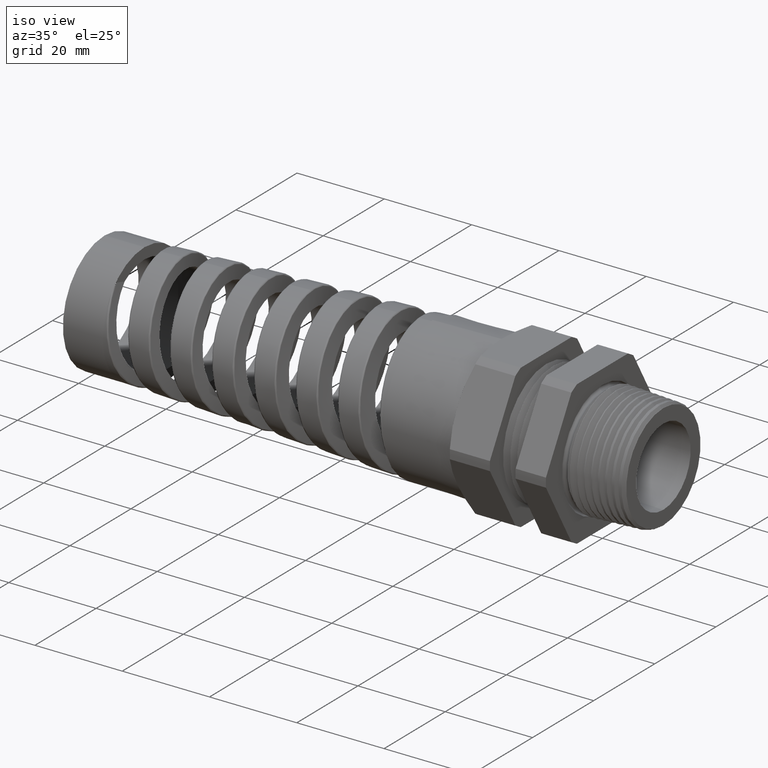
[diagram: clean part render]
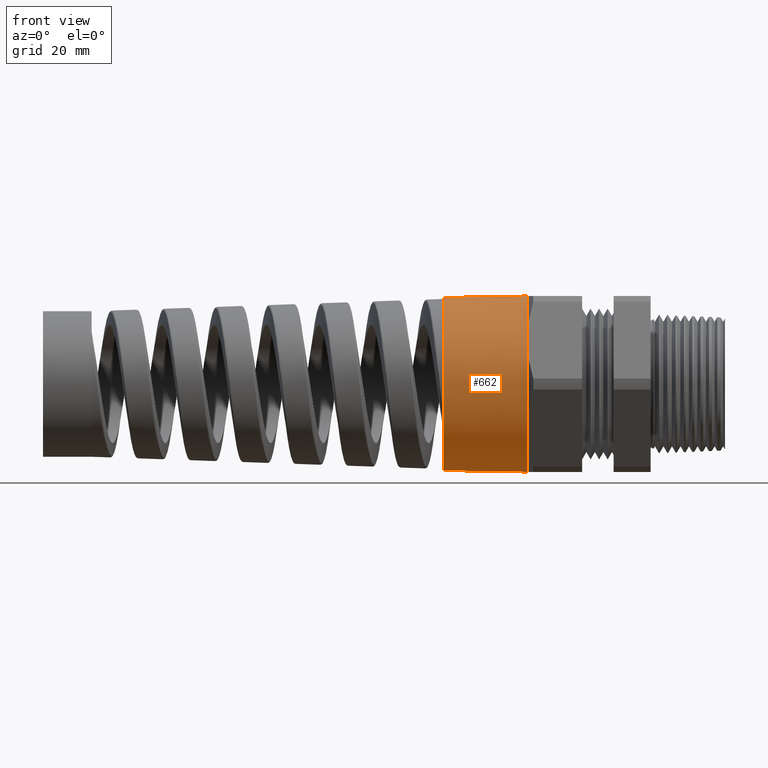
[diagram: tour spotlight — one face highlighted and labeled with its STEP entity id]
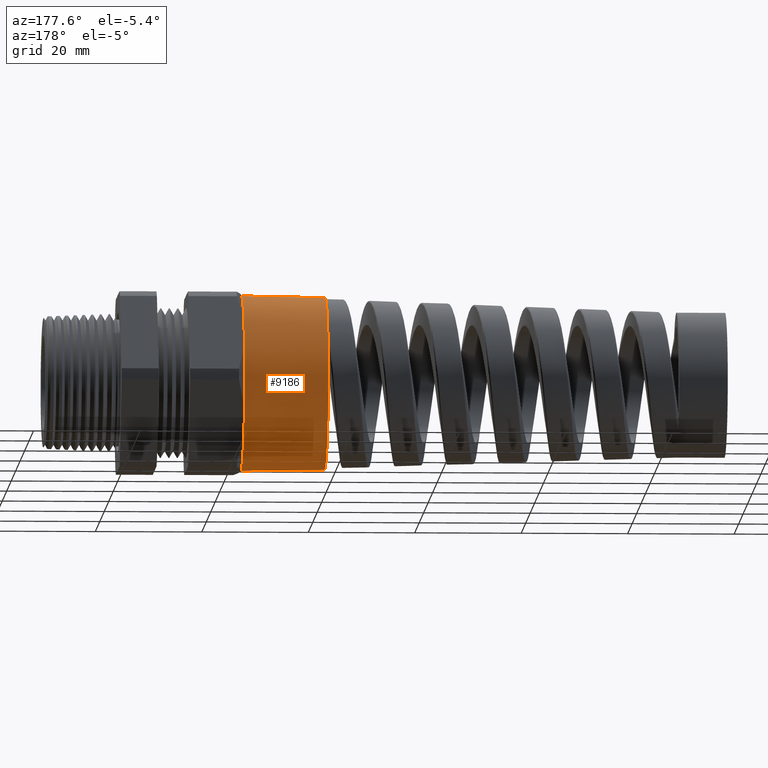
[diagram: tour spotlight — one face highlighted and labeled with its STEP entity id]
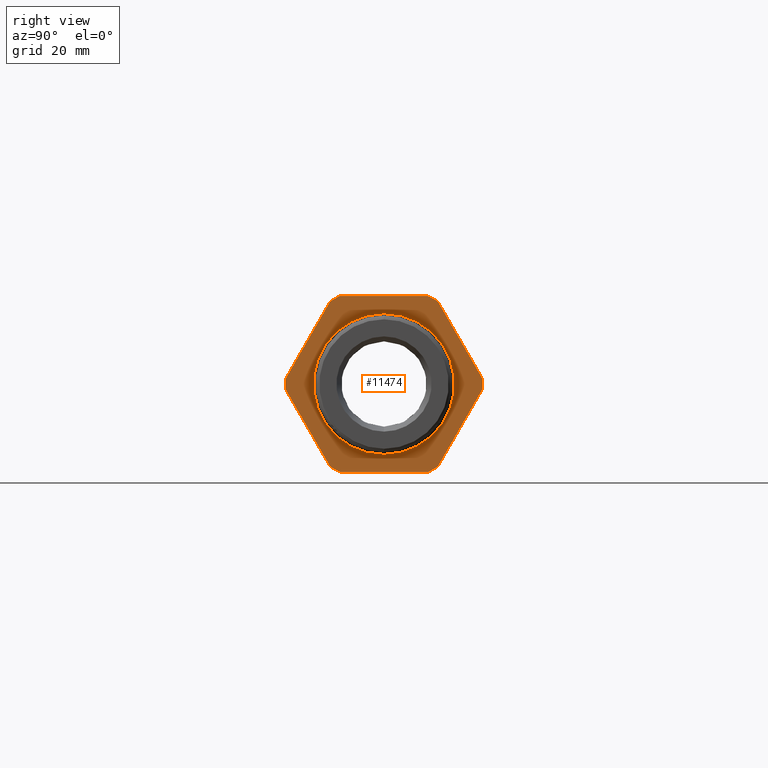
[diagram: tour spotlight — one face highlighted and labeled with its STEP entity id]
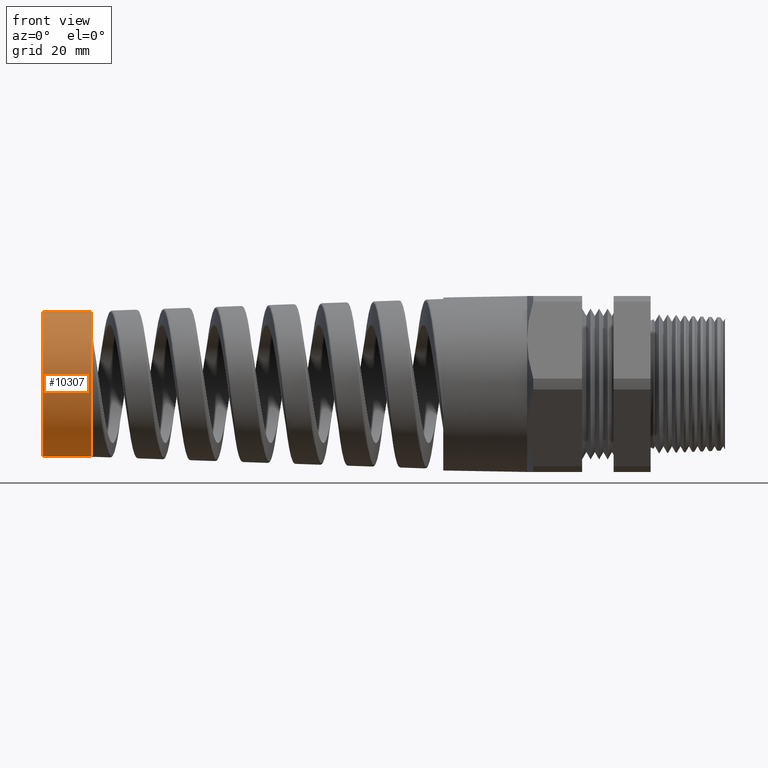
[diagram: tour spotlight — one face highlighted and labeled with its STEP entity id]
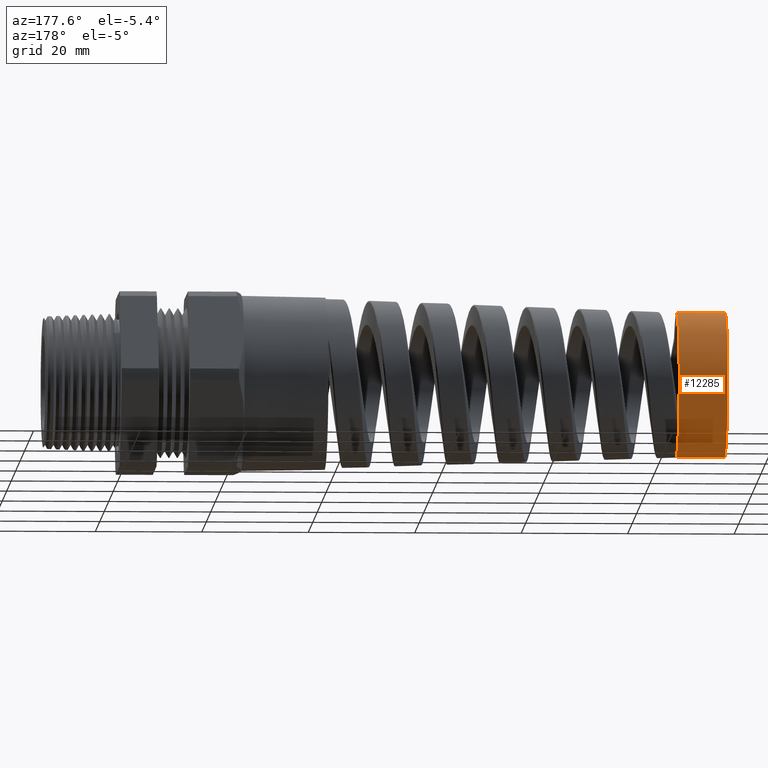
[diagram: tour spotlight — one face highlighted and labeled with its STEP entity id]
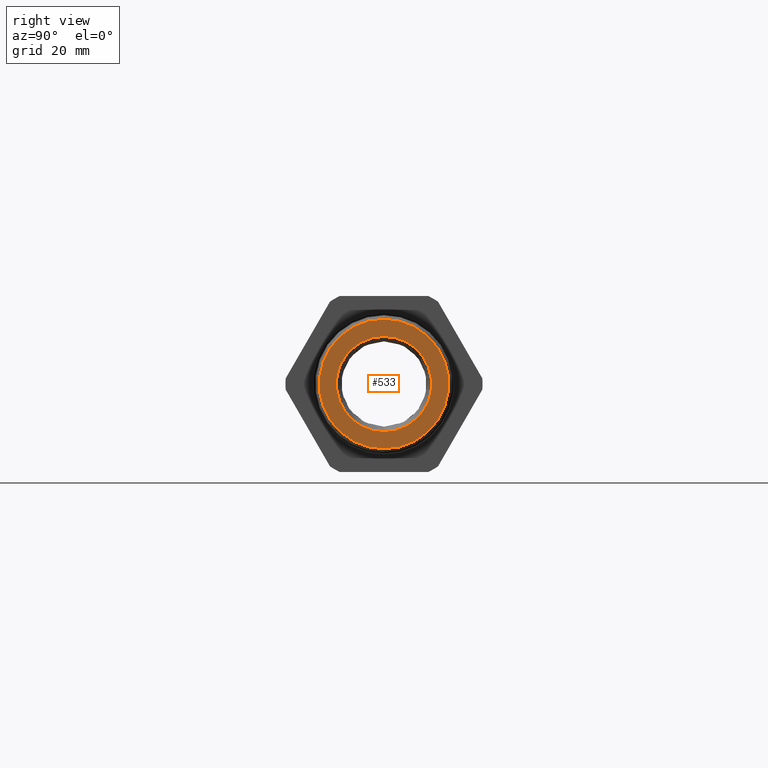
[diagram: tour spotlight — one face highlighted and labeled with its STEP entity id]
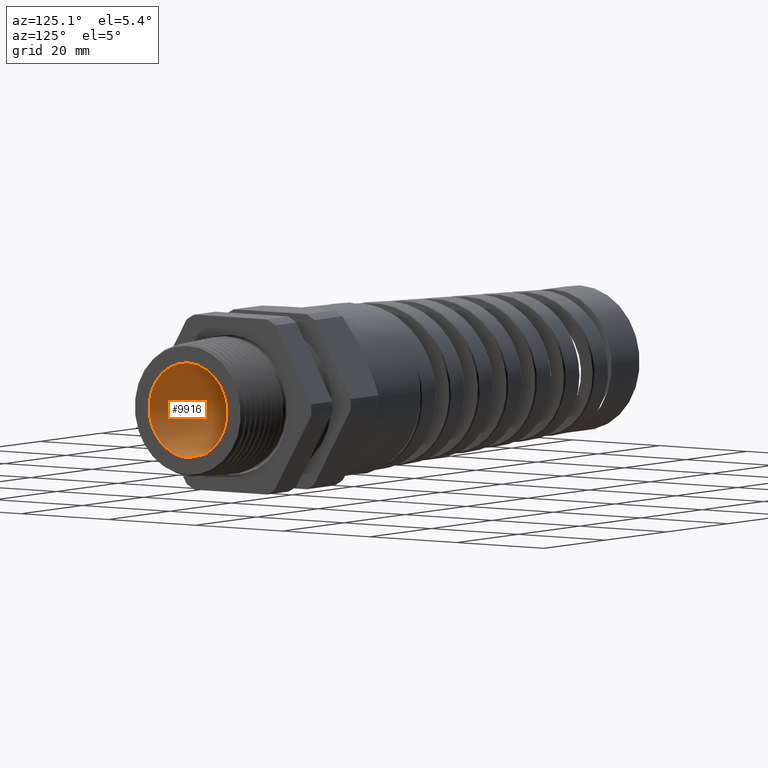
[diagram: tour spotlight — one face highlighted and labeled with its STEP entity id]
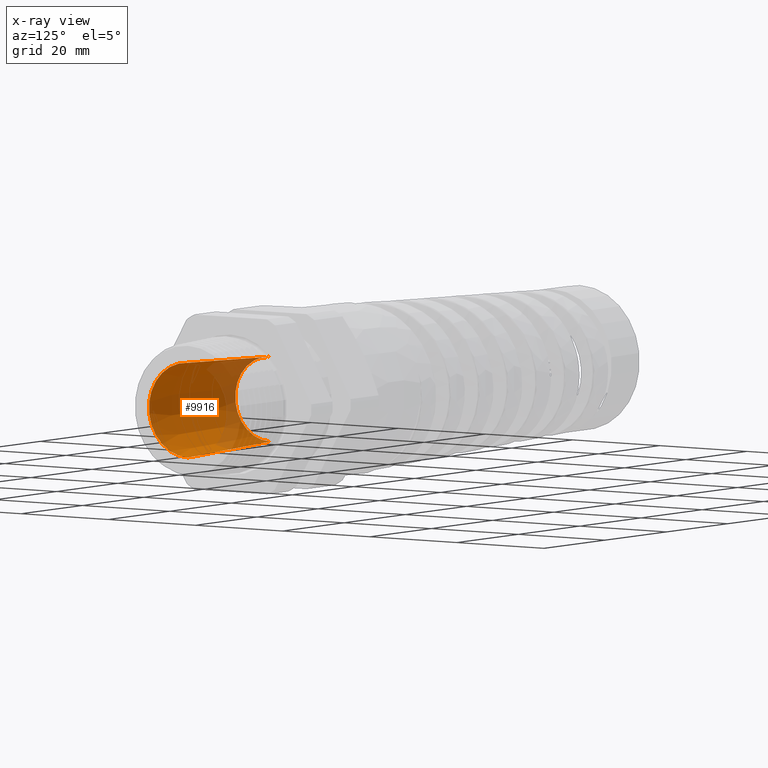
[diagram: x-ray of the same camera — body ghosted, this tour face saturated]
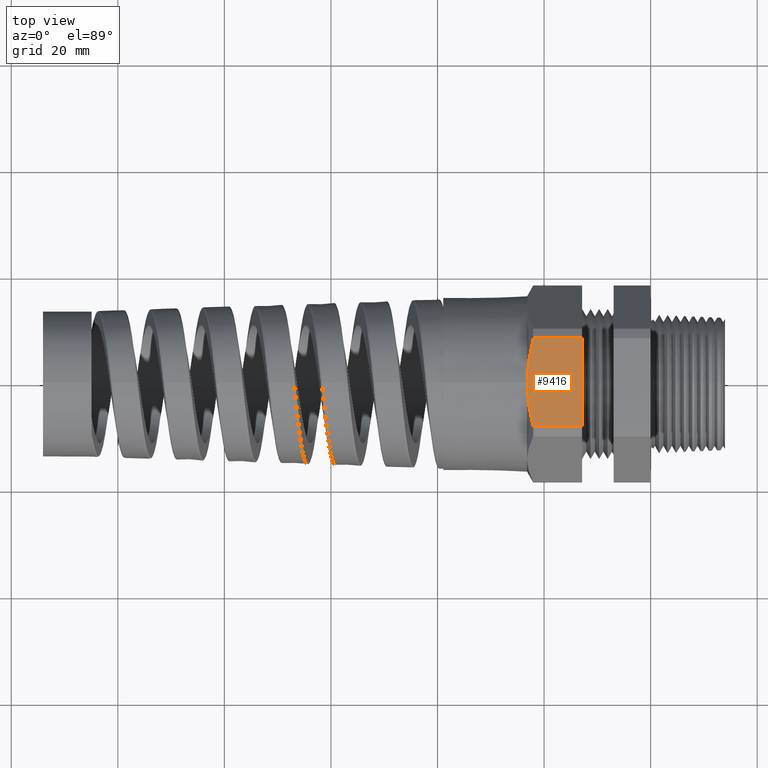
[diagram: tour spotlight — one face highlighted and labeled with its STEP entity id]
A machine part: a face-by-face anatomy tour. The part has 163 B-rep faces; the first image is the clean iso view, then the 8 largest visible faces are spotlighted one at a time (largest first), each with its STEP entity span.

Face 1 — front view, entity #662. In plain terms, the highlighted conical surface has half-angle 1 deg.
Definition (entity closure, byte-faithful):
#607 = VERTEX_POINT ( 'NONE', #13084 ) ;
#609 = ORIENTED_EDGE ( 'NONE', *, *, #620, .T. ) ;
#614 = EDGE_CURVE ( 'NONE', #656, #617, #13163, .T. ) ;
#615 = ORIENTED_EDGE ( 'NONE', *, *, #614, .T. ) ;
#617 = VERTEX_POINT ( 'NONE', #13187 ) ;
#618 = VERTEX_POINT ( 'NONE', #13186 ) ;
#620 = EDGE_CURVE ( 'NONE', #618, #656, #13211, .T. ) ;
#634 = ORIENTED_EDGE ( 'NONE', *, *, #643, .F. ) ;
#641 = EDGE_LOOP ( 'NONE', ( #634, #609, #615, #8318, #8432, #8569 ) ) ;
#643 = EDGE_CURVE ( 'NONE', #618, #607, #13202, .T. ) ;
#656 = VERTEX_POINT ( 'NONE', #13274 ) ;
#662 = ADVANCED_FACE ( 'NONE', ( #13273 ), #13270, .T. ) ;
#1041 = CARTESIAN_POINT ( 'NONE',  ( -0.9125000000000002000, 0.0000000000000000000, 0.6499999999999998000 ) ) ;
#1042 = DIRECTION ( 'NONE',  ( 0.0000000000000000000, 0.0000000000000000000, 1.000000000000000000 ) ) ;
#1043 = DIRECTION ( 'NONE',  ( -1.000000000000000000, 0.0000000000000000000, 0.0000000000000000000 ) ) ;
#1044 = CARTESIAN_POINT ( 'NONE',  ( -0.9125000000000002000, 0.0000000000000000000, 0.0000000000000000000 ) ) ;
#1045 = AXIS2_PLACEMENT_3D ( 'NONE', #1044, #1043, #1042 ) ;
#1046 = CIRCLE ( 'NONE', #1045, 0.6499999999999998000 ) ;
#1047 = CARTESIAN_POINT ( 'NONE',  ( -0.9125000000000002000, -0.5629165124598850500, 0.3249999999999999600 ) ) ;
#1048 = DIRECTION ( 'NONE',  ( 0.0000000000000000000, 0.0000000000000000000, 1.000000000000000000 ) ) ;
#1049 = DIRECTION ( 'NONE',  ( -1.000000000000000000, 0.0000000000000000000, 0.0000000000000000000 ) ) ;
#1050 = AXIS2_PLACEMENT_3D ( 'NONE', #1056, #1049, #1048 ) ;
#1051 = CIRCLE ( 'NONE', #1050, 0.6499999999999998000 ) ;
#1056 = CARTESIAN_POINT ( 'NONE',  ( -0.9125000000000002000, 0.0000000000000000000, 0.0000000000000000000 ) ) ;
#1059 = DIRECTION ( 'NONE',  ( 0.9998476951563912700, 0.0000000000000000000, 0.01745240643728355000 ) ) ;
#1060 = VECTOR ( 'NONE', #1059, 39.37007874015748100 ) ;
#1061 = CARTESIAN_POINT ( 'NONE',  ( -0.9125000000000002000, 0.0000000000000000000, 0.6499999999999999100 ) ) ;
#1062 = LINE ( 'NONE', #1061, #1060 ) ;
#8012 = EDGE_CURVE ( 'NONE', #607, #8512, #1062, .T. ) ;
#8318 = ORIENTED_EDGE ( 'NONE', *, *, #8358, .T. ) ;
#8358 = EDGE_CURVE ( 'NONE', #617, #8475, #1051, .T. ) ;
#8432 = ORIENTED_EDGE ( 'NONE', *, *, #8449, .T. ) ;
#8449 = EDGE_CURVE ( 'NONE', #8475, #8512, #1046, .T. ) ;
#8475 = VERTEX_POINT ( 'NONE', #1047 ) ;
#8512 = VERTEX_POINT ( 'NONE', #1041 ) ;
#8569 = ORIENTED_EDGE ( 'NONE', *, *, #8012, .F. ) ;
#13084 = CARTESIAN_POINT ( 'NONE',  ( -1.532120000000000100, 0.0000000000000000000, 0.6391844926691776500 ) ) ;
#13163 = CIRCLE ( 'NONE', #13191, 0.6499999999999998000 ) ;
#13186 = CARTESIAN_POINT ( 'NONE',  ( -1.532120000000000100, -7.893978312288564000E-017, -0.6391844926691776500 ) ) ;
#13187 = CARTESIAN_POINT ( 'NONE',  ( -0.9125000000000002000, -0.5629165124598849400, -0.3250000000000001800 ) ) ;
#13188 = DIRECTION ( 'NONE',  ( 0.0000000000000000000, 0.0000000000000000000, 1.000000000000000000 ) ) ;
#13189 = DIRECTION ( 'NONE',  ( -1.000000000000000000, 0.0000000000000000000, 0.0000000000000000000 ) ) ;
#13190 = CARTESIAN_POINT ( 'NONE',  ( -0.9125000000000002000, 0.0000000000000000000, 0.0000000000000000000 ) ) ;
#13191 = AXIS2_PLACEMENT_3D ( 'NONE', #13190, #13189, #13188 ) ;
#13198 = DIRECTION ( 'NONE',  ( 0.0000000000000000000, 0.0000000000000000000, 1.000000000000000000 ) ) ;
#13199 = DIRECTION ( 'NONE',  ( -1.000000000000000000, 0.0000000000000000000, 0.0000000000000000000 ) ) ;
#13200 = CARTESIAN_POINT ( 'NONE',  ( -1.532120000000000100, 0.0000000000000000000, 0.0000000000000000000 ) ) ;
#13201 = AXIS2_PLACEMENT_3D ( 'NONE', #13200, #13199, #13198 ) ;
#13202 = CIRCLE ( 'NONE', #13201, 0.6391844926691776500 ) ;
#13208 = DIRECTION ( 'NONE',  ( 0.9998476951563912700, -2.137303368083796300E-018, -0.01745240643728355000 ) ) ;
#13209 = VECTOR ( 'NONE', #13208, 39.37007874015748100 ) ;
#13210 = CARTESIAN_POINT ( 'NONE',  ( -0.9125000000000002000, -7.960204194457794200E-017, -0.6499999999999999100 ) ) ;
#13211 = LINE ( 'NONE', #13210, #13209 ) ;
#13267 = DIRECTION ( 'NONE',  ( 0.0000000000000000000, 0.0000000000000000000, 1.000000000000000000 ) ) ;
#13268 = DIRECTION ( 'NONE',  ( 1.000000000000000000, 0.0000000000000000000, 0.0000000000000000000 ) ) ;
#13269 = AXIS2_PLACEMENT_3D ( 'NONE', #13272, #13268, #13267 ) ;
#13270 = CONICAL_SURFACE ( 'NONE', #13269, 0.6499999999999999100, 0.01745329251994333400 ) ;
#13272 = CARTESIAN_POINT ( 'NONE',  ( -0.9125000000000002000, 0.0000000000000000000, 0.0000000000000000000 ) ) ;
#13273 = FACE_OUTER_BOUND ( 'NONE', #641, .T. ) ;
#13274 = CARTESIAN_POINT ( 'NONE',  ( -0.9125000000000002000, 0.0000000000000000000, -0.6500000000000000200 ) ) ;

Face 2 — auxiliary view, entity #9186. In plain terms, the highlighted conical surface has half-angle 1 deg.
Definition (entity closure, byte-faithful):
#607 = VERTEX_POINT ( 'NONE', #13084 ) ;
#618 = VERTEX_POINT ( 'NONE', #13186 ) ;
#620 = EDGE_CURVE ( 'NONE', #618, #656, #13211, .T. ) ;
#656 = VERTEX_POINT ( 'NONE', #13274 ) ;
#1041 = CARTESIAN_POINT ( 'NONE',  ( -0.9125000000000002000, 0.0000000000000000000, 0.6499999999999998000 ) ) ;
#1059 = DIRECTION ( 'NONE',  ( 0.9998476951563912700, 0.0000000000000000000, 0.01745240643728355000 ) ) ;
#1060 = VECTOR ( 'NONE', #1059, 39.37007874015748100 ) ;
#1061 = CARTESIAN_POINT ( 'NONE',  ( -0.9125000000000002000, 0.0000000000000000000, 0.6499999999999999100 ) ) ;
#1062 = LINE ( 'NONE', #1061, #1060 ) ;
#1293 = DIRECTION ( 'NONE',  ( 0.0000000000000000000, 0.0000000000000000000, 1.000000000000000000 ) ) ;
#1294 = DIRECTION ( 'NONE',  ( 1.000000000000000000, 0.0000000000000000000, 0.0000000000000000000 ) ) ;
#1295 = CARTESIAN_POINT ( 'NONE',  ( -0.9125000000000002000, 0.0000000000000000000, 0.0000000000000000000 ) ) ;
#1296 = AXIS2_PLACEMENT_3D ( 'NONE', #1295, #1294, #1293 ) ;
#1297 = CONICAL_SURFACE ( 'NONE', #1296, 0.6499999999999999100, 0.01745329251994333400 ) ;
#1298 = FACE_OUTER_BOUND ( 'NONE', #9185, .T. ) ;
#1299 = DIRECTION ( 'NONE',  ( 0.0000000000000000000, 0.0000000000000000000, 1.000000000000000000 ) ) ;
#1300 = DIRECTION ( 'NONE',  ( -1.000000000000000000, 0.0000000000000000000, 0.0000000000000000000 ) ) ;
#1301 = CARTESIAN_POINT ( 'NONE',  ( -1.532120000000000100, 0.0000000000000000000, 0.0000000000000000000 ) ) ;
#1308 = CIRCLE ( 'NONE', #1309, 0.6391844926691776500 ) ;
#1309 = AXIS2_PLACEMENT_3D ( 'NONE', #1301, #1300, #1299 ) ;
#2843 = CARTESIAN_POINT ( 'NONE',  ( -0.9125000000000002000, 0.5629165124598850500, -0.3250000000000000100 ) ) ;
#2845 = CARTESIAN_POINT ( 'NONE',  ( -0.9125000000000002000, 0.5629165124598849400, 0.3250000000000001800 ) ) ;
#8012 = EDGE_CURVE ( 'NONE', #607, #8512, #1062, .T. ) ;
#8512 = VERTEX_POINT ( 'NONE', #1041 ) ;
#9179 = ORIENTED_EDGE ( 'NONE', *, *, #8012, .T. ) ;
#9180 = ORIENTED_EDGE ( 'NONE', *, *, #9184, .F. ) ;
#9184 = EDGE_CURVE ( 'NONE', #607, #618, #1308, .T. ) ;
#9185 = EDGE_LOOP ( 'NONE', ( #9188, #9180, #9179, #9245, #9244, #9246 ) ) ;
#9186 = ADVANCED_FACE ( 'NONE', ( #1298 ), #1297, .T. ) ;
#9188 = ORIENTED_EDGE ( 'NONE', *, *, #620, .F. ) ;
#9244 = ORIENTED_EDGE ( 'NONE', *, *, #13731, .T. ) ;
#9245 = ORIENTED_EDGE ( 'NONE', *, *, #13867, .T. ) ;
#9246 = ORIENTED_EDGE ( 'NONE', *, *, #13744, .T. ) ;
#9426 = VERTEX_POINT ( 'NONE', #2843 ) ;
#9428 = VERTEX_POINT ( 'NONE', #2845 ) ;
#10452 = DIRECTION ( 'NONE',  ( 0.0000000000000000000, 0.0000000000000000000, 1.000000000000000000 ) ) ;
#10453 = DIRECTION ( 'NONE',  ( -1.000000000000000000, 0.0000000000000000000, 0.0000000000000000000 ) ) ;
#10454 = CARTESIAN_POINT ( 'NONE',  ( -0.9125000000000002000, 0.0000000000000000000, 0.0000000000000000000 ) ) ;
#10455 = AXIS2_PLACEMENT_3D ( 'NONE', #10454, #10453, #10452 ) ;
#10456 = CIRCLE ( 'NONE', #10455, 0.6499999999999998000 ) ;
#10494 = DIRECTION ( 'NONE',  ( 0.0000000000000000000, 0.0000000000000000000, 1.000000000000000000 ) ) ;
#10495 = DIRECTION ( 'NONE',  ( -1.000000000000000000, 0.0000000000000000000, 0.0000000000000000000 ) ) ;
#10496 = AXIS2_PLACEMENT_3D ( 'NONE', #10501, #10495, #10494 ) ;
#10497 = CIRCLE ( 'NONE', #10496, 0.6499999999999998000 ) ;
#10501 = CARTESIAN_POINT ( 'NONE',  ( -0.9125000000000002000, 0.0000000000000000000, 0.0000000000000000000 ) ) ;
#10532 = DIRECTION ( 'NONE',  ( 0.0000000000000000000, 0.0000000000000000000, 1.000000000000000000 ) ) ;
#10533 = DIRECTION ( 'NONE',  ( -1.000000000000000000, 0.0000000000000000000, 0.0000000000000000000 ) ) ;
#10534 = AXIS2_PLACEMENT_3D ( 'NONE', #10540, #10533, #10532 ) ;
#10535 = CIRCLE ( 'NONE', #10534, 0.6499999999999998000 ) ;
#10540 = CARTESIAN_POINT ( 'NONE',  ( -0.9125000000000002000, 0.0000000000000000000, 0.0000000000000000000 ) ) ;
#13084 = CARTESIAN_POINT ( 'NONE',  ( -1.532120000000000100, 0.0000000000000000000, 0.6391844926691776500 ) ) ;
#13186 = CARTESIAN_POINT ( 'NONE',  ( -1.532120000000000100, -7.893978312288564000E-017, -0.6391844926691776500 ) ) ;
#13208 = DIRECTION ( 'NONE',  ( 0.9998476951563912700, -2.137303368083796300E-018, -0.01745240643728355000 ) ) ;
#13209 = VECTOR ( 'NONE', #13208, 39.37007874015748100 ) ;
#13210 = CARTESIAN_POINT ( 'NONE',  ( -0.9125000000000002000, -7.960204194457794200E-017, -0.6499999999999999100 ) ) ;
#13211 = LINE ( 'NONE', #13210, #13209 ) ;
#13274 = CARTESIAN_POINT ( 'NONE',  ( -0.9125000000000002000, 0.0000000000000000000, -0.6500000000000000200 ) ) ;
#13731 = EDGE_CURVE ( 'NONE', #9428, #9426, #10456, .T. ) ;
#13744 = EDGE_CURVE ( 'NONE', #9426, #656, #10497, .T. ) ;
#13867 = EDGE_CURVE ( 'NONE', #8512, #9428, #10535, .T. ) ;

Face 3 — right view, entity #11474. In plain terms, the highlighted planar face has unit normal (-1, 0, 0).
Definition (entity closure, byte-faithful):
#589 = EDGE_CURVE ( 'NONE', #593, #598, #13073, .T. ) ;
#593 = VERTEX_POINT ( 'NONE', #13069 ) ;
#598 = VERTEX_POINT ( 'NONE', #13067 ) ;
#733 = VERTEX_POINT ( 'NONE', #13357 ) ;
#741 = ORIENTED_EDGE ( 'NONE', *, *, #742, .T. ) ;
#742 = EDGE_CURVE ( 'NONE', #10942, #733, #13349, .T. ) ;
#764 = ORIENTED_EDGE ( 'NONE', *, *, #589, .F. ) ;
#855 = EDGE_LOOP ( 'NONE', ( #856, #764 ) ) ;
#856 = ORIENTED_EDGE ( 'NONE', *, *, #942, .F. ) ;
#861 = EDGE_CURVE ( 'NONE', #11466, #885, #13492, .T. ) ;
#871 = ORIENTED_EDGE ( 'NONE', *, *, #861, .F. ) ;
#875 = EDGE_CURVE ( 'NONE', #895, #885, #13488, .T. ) ;
#885 = VERTEX_POINT ( 'NONE', #13484 ) ;
#889 = EDGE_CURVE ( 'NONE', #895, #733, #13483, .T. ) ;
#895 = VERTEX_POINT ( 'NONE', #13478 ) ;
#905 = ORIENTED_EDGE ( 'NONE', *, *, #875, .T. ) ;
#909 = ORIENTED_EDGE ( 'NONE', *, *, #889, .F. ) ;
#942 = EDGE_CURVE ( 'NONE', #598, #593, #13477, .T. ) ;
#3996 = DIRECTION ( 'NONE',  ( 0.0000000000000000000, 0.0000000000000000000, 1.000000000000000000 ) ) ;
#3997 = DIRECTION ( 'NONE',  ( -1.000000000000000000, 0.0000000000000000000, 0.0000000000000000000 ) ) ;
#3998 = CARTESIAN_POINT ( 'NONE',  ( 0.0000000000000000000, 0.0000000000000000000, 0.0000000000000000000 ) ) ;
#3999 = AXIS2_PLACEMENT_3D ( 'NONE', #3998, #3997, #3996 ) ;
#4000 = CIRCLE ( 'NONE', #3999, 0.7280000000000000900 ) ;
#4006 = DIRECTION ( 'NONE',  ( 0.0000000000000000000, 0.5000000000000001100, 0.8660254037844386000 ) ) ;
#4007 = VECTOR ( 'NONE', #4006, 39.37007874015748100 ) ;
#4008 = CARTESIAN_POINT ( 'NONE',  ( 0.0000000000000000000, 0.3989927496919443200, -0.6089242856819405700 ) ) ;
#4009 = LINE ( 'NONE', #4008, #4007 ) ;
#4065 = CARTESIAN_POINT ( 'NONE',  ( 0.0000000000000000000, 0.3989927496919443200, -0.6089242856819405700 ) ) ;
#4090 = DIRECTION ( 'NONE',  ( 0.0000000000000000000, 0.0000000000000000000, 1.000000000000000000 ) ) ;
#4091 = DIRECTION ( 'NONE',  ( -1.000000000000000000, 0.0000000000000000000, 0.0000000000000000000 ) ) ;
#4092 = CARTESIAN_POINT ( 'NONE',  ( 0.0000000000000000000, 0.0000000000000000000, 0.0000000000000000000 ) ) ;
#4093 = AXIS2_PLACEMENT_3D ( 'NONE', #4092, #4091, #4090 ) ;
#4094 = CIRCLE ( 'NONE', #4093, 0.7280000000000000900 ) ;
#4095 = DIRECTION ( 'NONE',  ( 0.0000000000000000000, -0.5000000000000003300, 0.8660254037844383700 ) ) ;
#4096 = VECTOR ( 'NONE', #4095, 39.37007874015748100 ) ;
#4097 = CARTESIAN_POINT ( 'NONE',  ( 0.0000000000000000000, 0.7268402752278256800, 0.04107571431805962700 ) ) ;
#4098 = DIRECTION ( 'NONE',  ( 0.0000000000000000000, 0.0000000000000000000, 1.000000000000000000 ) ) ;
#4099 = DIRECTION ( 'NONE',  ( -1.000000000000000000, 0.0000000000000000000, 0.0000000000000000000 ) ) ;
#4100 = CARTESIAN_POINT ( 'NONE',  ( 0.0000000000000000000, 0.0000000000000000000, 0.0000000000000000000 ) ) ;
#4101 = AXIS2_PLACEMENT_3D ( 'NONE', #4100, #4099, #4098 ) ;
#4102 = CIRCLE ( 'NONE', #4101, 0.7280000000000000900 ) ;
#4103 = LINE ( 'NONE', #4097, #4096 ) ;
#4108 = CARTESIAN_POINT ( 'NONE',  ( 0.0000000000000000000, 0.7268402752278256800, -0.04107571431805931400 ) ) ;
#4109 = CARTESIAN_POINT ( 'NONE',  ( 0.0000000000000000000, 0.7268402752278255700, 0.04107571431805956400 ) ) ;
#4110 = CARTESIAN_POINT ( 'NONE',  ( 0.0000000000000000000, 0.3989927496919443200, 0.6089242856819405700 ) ) ;
#4111 = DIRECTION ( 'NONE',  ( 0.0000000000000000000, 0.0000000000000000000, 1.000000000000000000 ) ) ;
#4112 = DIRECTION ( 'NONE',  ( -1.000000000000000000, 0.0000000000000000000, 0.0000000000000000000 ) ) ;
#4113 = CARTESIAN_POINT ( 'NONE',  ( 0.0000000000000000000, 0.7280000000000000900, 0.0000000000000000000 ) ) ;
#4114 = AXIS2_PLACEMENT_3D ( 'NONE', #4113, #4112, #4111 ) ;
#4115 = PLANE ( 'NONE',  #4114 ) ;
#4116 = FACE_BOUND ( 'NONE', #855, .T. ) ;
#4117 = FACE_OUTER_BOUND ( 'NONE', #11465, .T. ) ;
#4118 = DIRECTION ( 'NONE',  ( 0.0000000000000000000, 0.5000000000000003300, -0.8660254037844383700 ) ) ;
#4119 = VECTOR ( 'NONE', #4118, 39.37007874015748100 ) ;
#4120 = CARTESIAN_POINT ( 'NONE',  ( 0.0000000000000000000, -0.7268402752278255700, -0.04107571431805972400 ) ) ;
#4121 = LINE ( 'NONE', #4120, #4119 ) ;
#4122 = DIRECTION ( 'NONE',  ( 0.0000000000000000000, 0.0000000000000000000, 1.000000000000000000 ) ) ;
#4123 = DIRECTION ( 'NONE',  ( -1.000000000000000000, 0.0000000000000000000, 0.0000000000000000000 ) ) ;
#4124 = CARTESIAN_POINT ( 'NONE',  ( 0.0000000000000000000, 0.0000000000000000000, 0.0000000000000000000 ) ) ;
#4125 = AXIS2_PLACEMENT_3D ( 'NONE', #4124, #4123, #4122 ) ;
#4126 = CIRCLE ( 'NONE', #4125, 0.7280000000000000900 ) ;
#4127 = DIRECTION ( 'NONE',  ( 0.0000000000000000000, 1.000000000000000000, 0.0000000000000000000 ) ) ;
#4128 = VECTOR ( 'NONE', #4127, 39.37007874015748100 ) ;
#4129 = CARTESIAN_POINT ( 'NONE',  ( 0.0000000000000000000, -0.3278475255358810900, -0.6500000000000000200 ) ) ;
#4130 = LINE ( 'NONE', #4129, #4128 ) ;
#4137 = CARTESIAN_POINT ( 'NONE',  ( 0.0000000000000000000, -0.7268402752278255700, -0.04107571431805972400 ) ) ;
#4138 = CARTESIAN_POINT ( 'NONE',  ( 0.0000000000000000000, -0.3989927496919442600, -0.6089242856819405700 ) ) ;
#4139 = CARTESIAN_POINT ( 'NONE',  ( 0.0000000000000000000, 0.3278475255358810900, -0.6500000000000000200 ) ) ;
#4140 = CARTESIAN_POINT ( 'NONE',  ( 0.0000000000000000000, -0.3278475255358812000, -0.6499999999999999100 ) ) ;
#6553 = CARTESIAN_POINT ( 'NONE',  ( 0.0000000000000000000, 0.3278475255358814200, 0.6499999999999998000 ) ) ;
#10942 = VERTEX_POINT ( 'NONE', #6553 ) ;
#11256 = ORIENTED_EDGE ( 'NONE', *, *, #11743, .F. ) ;
#11461 = VERTEX_POINT ( 'NONE', #4140 ) ;
#11462 = VERTEX_POINT ( 'NONE', #4139 ) ;
#11463 = ORIENTED_EDGE ( 'NONE', *, *, #11471, .F. ) ;
#11464 = VERTEX_POINT ( 'NONE', #4138 ) ;
#11465 = EDGE_LOOP ( 'NONE', ( #11468, #11463, #11467, #11256, #11724, #11477, #11486, #11475, #741, #909, #905, #871 ) ) ;
#11466 = VERTEX_POINT ( 'NONE', #4137 ) ;
#11467 = ORIENTED_EDGE ( 'NONE', *, *, #11470, .T. ) ;
#11468 = ORIENTED_EDGE ( 'NONE', *, *, #11473, .T. ) ;
#11470 = EDGE_CURVE ( 'NONE', #11461, #11462, #4130, .T. ) ;
#11471 = EDGE_CURVE ( 'NONE', #11461, #11464, #4126, .T. ) ;
#11473 = EDGE_CURVE ( 'NONE', #11466, #11464, #4121, .T. ) ;
#11474 = ADVANCED_FACE ( 'NONE', ( #4117, #4116 ), #4115, .F. ) ;
#11475 = ORIENTED_EDGE ( 'NONE', *, *, #11487, .F. ) ;
#11476 = VERTEX_POINT ( 'NONE', #4110 ) ;
#11477 = ORIENTED_EDGE ( 'NONE', *, *, #11503, .F. ) ;
#11479 = VERTEX_POINT ( 'NONE', #4109 ) ;
#11483 = VERTEX_POINT ( 'NONE', #4108 ) ;
#11486 = ORIENTED_EDGE ( 'NONE', *, *, #11489, .T. ) ;
#11487 = EDGE_CURVE ( 'NONE', #10942, #11476, #4102, .T. ) ;
#11489 = EDGE_CURVE ( 'NONE', #11479, #11476, #4103, .T. ) ;
#11503 = EDGE_CURVE ( 'NONE', #11479, #11483, #4094, .T. ) ;
#11724 = ORIENTED_EDGE ( 'NONE', *, *, #11737, .T. ) ;
#11726 = VERTEX_POINT ( 'NONE', #4065 ) ;
#11737 = EDGE_CURVE ( 'NONE', #11726, #11483, #4009, .T. ) ;
#11743 = EDGE_CURVE ( 'NONE', #11726, #11462, #4000, .T. ) ;
#13045 = CARTESIAN_POINT ( 'NONE',  ( 0.0000000000000000000, 0.0000000000000000000, 0.0000000000000000000 ) ) ;
#13067 = CARTESIAN_POINT ( 'NONE',  ( 0.0000000000000000000, 0.0000000000000000000, -0.5199999999999999100 ) ) ;
#13069 = CARTESIAN_POINT ( 'NONE',  ( 0.0000000000000000000, 6.368163355566234900E-017, 0.5199999999999999100 ) ) ;
#13070 = DIRECTION ( 'NONE',  ( 0.0000000000000000000, 0.0000000000000000000, 1.000000000000000000 ) ) ;
#13071 = DIRECTION ( 'NONE',  ( 1.000000000000000000, 0.0000000000000000000, 0.0000000000000000000 ) ) ;
#13072 = AXIS2_PLACEMENT_3D ( 'NONE', #13045, #13071, #13070 ) ;
#13073 = CIRCLE ( 'NONE', #13072, 0.5199999999999999100 ) ;
#13346 = DIRECTION ( 'NONE',  ( 0.0000000000000000000, -1.000000000000000000, 0.0000000000000000000 ) ) ;
#13347 = VECTOR ( 'NONE', #13346, 39.37007874015748100 ) ;
#13348 = CARTESIAN_POINT ( 'NONE',  ( 0.0000000000000000000, 0.3278475255358813700, 0.6499999999999999100 ) ) ;
#13349 = LINE ( 'NONE', #13348, #13347 ) ;
#13357 = CARTESIAN_POINT ( 'NONE',  ( 0.0000000000000000000, -0.3278475255358813700, 0.6499999999999999100 ) ) ;
#13473 = DIRECTION ( 'NONE',  ( 0.0000000000000000000, 0.0000000000000000000, 1.000000000000000000 ) ) ;
#13474 = DIRECTION ( 'NONE',  ( 1.000000000000000000, 0.0000000000000000000, 0.0000000000000000000 ) ) ;
#13475 = CARTESIAN_POINT ( 'NONE',  ( 0.0000000000000000000, 0.0000000000000000000, 0.0000000000000000000 ) ) ;
#13476 = AXIS2_PLACEMENT_3D ( 'NONE', #13475, #13474, #13473 ) ;
#13477 = CIRCLE ( 'NONE', #13476, 0.5199999999999999100 ) ;
#13478 = CARTESIAN_POINT ( 'NONE',  ( 0.0000000000000000000, -0.3989927496919437600, 0.6089242856819410100 ) ) ;
#13479 = DIRECTION ( 'NONE',  ( 0.0000000000000000000, 0.0000000000000000000, 1.000000000000000000 ) ) ;
#13480 = DIRECTION ( 'NONE',  ( -1.000000000000000000, 0.0000000000000000000, 0.0000000000000000000 ) ) ;
#13481 = CARTESIAN_POINT ( 'NONE',  ( 0.0000000000000000000, 0.0000000000000000000, 0.0000000000000000000 ) ) ;
#13482 = AXIS2_PLACEMENT_3D ( 'NONE', #13481, #13480, #13479 ) ;
#13483 = CIRCLE ( 'NONE', #13482, 0.7280000000000000900 ) ;
#13484 = CARTESIAN_POINT ( 'NONE',  ( 0.0000000000000000000, -0.7268402752278255700, 0.04107571431805911300 ) ) ;
#13485 = DIRECTION ( 'NONE',  ( 0.0000000000000000000, -0.5000000000000000000, -0.8660254037844386000 ) ) ;
#13486 = VECTOR ( 'NONE', #13485, 39.37007874015748900 ) ;
#13487 = CARTESIAN_POINT ( 'NONE',  ( 0.0000000000000000000, -0.3989927496919439800, 0.6089242856819407900 ) ) ;
#13488 = LINE ( 'NONE', #13487, #13486 ) ;
#13489 = DIRECTION ( 'NONE',  ( 0.0000000000000000000, 0.0000000000000000000, 1.000000000000000000 ) ) ;
#13490 = DIRECTION ( 'NONE',  ( -1.000000000000000000, 0.0000000000000000000, 0.0000000000000000000 ) ) ;
#13491 = AXIS2_PLACEMENT_3D ( 'NONE', #13498, #13490, #13489 ) ;
#13492 = CIRCLE ( 'NONE', #13491, 0.7280000000000000900 ) ;
#13498 = CARTESIAN_POINT ( 'NONE',  ( 0.0000000000000000000, 0.0000000000000000000, 0.0000000000000000000 ) ) ;

Face 4 — front view, entity #10307. In plain terms, the highlighted cylindrical surface (partial cylindrical patch) has radius 13.6545 mm, axis along (1, 0, 0).
Definition (entity closure, byte-faithful):
#2987 = DIRECTION ( 'NONE',  ( 0.0000000000000000000, 0.0000000000000000000, 1.000000000000000000 ) ) ;
#2988 = DIRECTION ( 'NONE',  ( -1.000000000000000000, 0.0000000000000000000, 0.0000000000000000000 ) ) ;
#2989 = CARTESIAN_POINT ( 'NONE',  ( -4.489999999999999300, 0.0000000000000000000, 0.0000000000000000000 ) ) ;
#2990 = AXIS2_PLACEMENT_3D ( 'NONE', #2989, #2988, #2987 ) ;
#2991 = CIRCLE ( 'NONE', #2990, 0.5375801833083619900 ) ;
#3395 = CARTESIAN_POINT ( 'NONE',  ( -4.130799999999999800, 0.0000000000000000000, 0.0000000000000000000 ) ) ;
#3452 = DIRECTION ( 'NONE',  ( 0.0000000000000000000, 0.0000000000000000000, 1.000000000000000000 ) ) ;
#3453 = DIRECTION ( 'NONE',  ( -1.000000000000000000, 0.0000000000000000000, 0.0000000000000000000 ) ) ;
#3454 = AXIS2_PLACEMENT_3D ( 'NONE', #3395, #3453, #3452 ) ;
#3455 = CIRCLE ( 'NONE', #3454, 0.5375801833083619900 ) ;
#3922 = DIRECTION ( 'NONE',  ( 0.0000000000000000000, 0.0000000000000000000, -1.000000000000000000 ) ) ;
#3923 = DIRECTION ( 'NONE',  ( 1.000000000000000000, 0.0000000000000000000, 0.0000000000000000000 ) ) ;
#3924 = CARTESIAN_POINT ( 'NONE',  ( -4.489999999999999300, 0.0000000000000000000, 0.0000000000000000000 ) ) ;
#3925 = AXIS2_PLACEMENT_3D ( 'NONE', #3924, #3923, #3922 ) ;
#3927 = CYLINDRICAL_SURFACE ( 'NONE', #3925, 0.5375801833083619900 ) ;
#3932 = FACE_OUTER_BOUND ( 'NONE', #10289, .T. ) ;
#6957 = DIRECTION ( 'NONE',  ( 1.000000000000000000, 0.0000000000000000000, 0.0000000000000000000 ) ) ;
#6958 = VECTOR ( 'NONE', #6957, 39.37007874015748100 ) ;
#6959 = CARTESIAN_POINT ( 'NONE',  ( -4.489999999999999300, 0.0000000000000000000, -0.5375801833083619900 ) ) ;
#6960 = LINE ( 'NONE', #6959, #6958 ) ;
#6973 = CARTESIAN_POINT ( 'NONE',  ( -4.130799999999999800, 6.583458507736329500E-017, 0.5375801833083619900 ) ) ;
#7146 = DIRECTION ( 'NONE',  ( 1.000000000000000000, 0.0000000000000000000, 0.0000000000000000000 ) ) ;
#7147 = VECTOR ( 'NONE', #7146, 39.37007874015748100 ) ;
#7148 = CARTESIAN_POINT ( 'NONE',  ( -4.489999999999999300, 6.583458507736329500E-017, 0.5375801833083619900 ) ) ;
#7149 = LINE ( 'NONE', #7148, #7147 ) ;
#7154 = CARTESIAN_POINT ( 'NONE',  ( -4.130799999999999800, 0.0000000000000000000, -0.5375801833083613300 ) ) ;
#7155 = CARTESIAN_POINT ( 'NONE',  ( -4.489999999999999300, 0.0000000000000000000, -0.5375801833083619900 ) ) ;
#7156 = CARTESIAN_POINT ( 'NONE',  ( -4.489999999999999300, 6.583458507736329500E-017, 0.5375801833083619900 ) ) ;
#9588 = EDGE_CURVE ( 'NONE', #12321, #12320, #2991, .T. ) ;
#10244 = EDGE_CURVE ( 'NONE', #12528, #12271, #3455, .T. ) ;
#10275 = ORIENTED_EDGE ( 'NONE', *, *, #9588, .F. ) ;
#10277 = ORIENTED_EDGE ( 'NONE', *, *, #12527, .F. ) ;
#10279 = ORIENTED_EDGE ( 'NONE', *, *, #10244, .T. ) ;
#10280 = ORIENTED_EDGE ( 'NONE', *, *, #12276, .T. ) ;
#10286 = ORIENTED_EDGE ( 'NONE', *, *, #12325, .F. ) ;
#10289 = EDGE_LOOP ( 'NONE', ( #10286, #10275, #10280, #10277, #10279 ) ) ;
#10307 = ADVANCED_FACE ( 'NONE', ( #3932 ), #3927, .T. ) ;
#10432 = CARTESIAN_POINT ( 'NONE',  ( -4.130799999999999800, -0.4267726802073218400, 0.3268907048456886100 ) ) ;
#10433 = DIRECTION ( 'NONE',  ( 0.0000000000000000000, 0.0000000000000000000, -1.000000000000000000 ) ) ;
#10434 = DIRECTION ( 'NONE',  ( 1.000000000000000000, 0.0000000000000000000, 0.0000000000000000000 ) ) ;
#10435 = AXIS2_PLACEMENT_3D ( 'NONE', #10442, #10434, #10433 ) ;
#10436 = CIRCLE ( 'NONE', #10435, 0.5375801833083612100 ) ;
#10442 = CARTESIAN_POINT ( 'NONE',  ( -4.130799999999999800, 0.0000000000000000000, 0.0000000000000000000 ) ) ;
#12271 = VERTEX_POINT ( 'NONE', #6973 ) ;
#12276 = EDGE_CURVE ( 'NONE', #12321, #12322, #6960, .T. ) ;
#12320 = VERTEX_POINT ( 'NONE', #7156 ) ;
#12321 = VERTEX_POINT ( 'NONE', #7155 ) ;
#12322 = VERTEX_POINT ( 'NONE', #7154 ) ;
#12325 = EDGE_CURVE ( 'NONE', #12320, #12271, #7149, .T. ) ;
#12527 = EDGE_CURVE ( 'NONE', #12528, #12322, #10436, .T. ) ;
#12528 = VERTEX_POINT ( 'NONE', #10432 ) ;

Face 5 — auxiliary view, entity #12285. In plain terms, the highlighted cylindrical surface (partial cylindrical patch) has radius 13.6545 mm, axis along (1, 0, 0).
Definition (entity closure, byte-faithful):
#6905 = DIRECTION ( 'NONE',  ( 0.0000000000000000000, 0.0000000000000000000, -1.000000000000000000 ) ) ;
#6906 = DIRECTION ( 'NONE',  ( 1.000000000000000000, 0.0000000000000000000, 0.0000000000000000000 ) ) ;
#6907 = CARTESIAN_POINT ( 'NONE',  ( -4.130799999999999800, 0.0000000000000000000, 0.0000000000000000000 ) ) ;
#6908 = AXIS2_PLACEMENT_3D ( 'NONE', #6907, #6906, #6905 ) ;
#6909 = CIRCLE ( 'NONE', #6908, 0.5375801833083612100 ) ;
#6915 = CARTESIAN_POINT ( 'NONE',  ( -4.130799999999999800, 0.3509568706405211700, -0.4072121418082517200 ) ) ;
#6957 = DIRECTION ( 'NONE',  ( 1.000000000000000000, 0.0000000000000000000, 0.0000000000000000000 ) ) ;
#6958 = VECTOR ( 'NONE', #6957, 39.37007874015748100 ) ;
#6959 = CARTESIAN_POINT ( 'NONE',  ( -4.489999999999999300, 0.0000000000000000000, -0.5375801833083619900 ) ) ;
#6960 = LINE ( 'NONE', #6959, #6958 ) ;
#6968 = DIRECTION ( 'NONE',  ( 0.0000000000000000000, 0.0000000000000000000, 1.000000000000000000 ) ) ;
#6969 = DIRECTION ( 'NONE',  ( -1.000000000000000000, 0.0000000000000000000, 0.0000000000000000000 ) ) ;
#6970 = CARTESIAN_POINT ( 'NONE',  ( -4.130799999999999800, 0.0000000000000000000, 0.0000000000000000000 ) ) ;
#6971 = AXIS2_PLACEMENT_3D ( 'NONE', #6970, #6969, #6968 ) ;
#6972 = CIRCLE ( 'NONE', #6971, 0.5375801833083619900 ) ;
#6973 = CARTESIAN_POINT ( 'NONE',  ( -4.130799999999999800, 6.583458507736329500E-017, 0.5375801833083619900 ) ) ;
#6998 = DIRECTION ( 'NONE',  ( 0.0000000000000000000, 0.0000000000000000000, -1.000000000000000000 ) ) ;
#6999 = DIRECTION ( 'NONE',  ( 1.000000000000000000, 0.0000000000000000000, 0.0000000000000000000 ) ) ;
#7000 = CARTESIAN_POINT ( 'NONE',  ( -4.489999999999999300, 0.0000000000000000000, 0.0000000000000000000 ) ) ;
#7001 = AXIS2_PLACEMENT_3D ( 'NONE', #7000, #6999, #6998 ) ;
#7003 = CYLINDRICAL_SURFACE ( 'NONE', #7001, 0.5375801833083619900 ) ;
#7004 = FACE_OUTER_BOUND ( 'NONE', #12286, .T. ) ;
#7005 = DIRECTION ( 'NONE',  ( 0.0000000000000000000, 0.0000000000000000000, 1.000000000000000000 ) ) ;
#7006 = DIRECTION ( 'NONE',  ( -1.000000000000000000, 0.0000000000000000000, 0.0000000000000000000 ) ) ;
#7007 = CARTESIAN_POINT ( 'NONE',  ( -4.489999999999999300, 0.0000000000000000000, 0.0000000000000000000 ) ) ;
#7008 = AXIS2_PLACEMENT_3D ( 'NONE', #7007, #7006, #7005 ) ;
#7009 = CIRCLE ( 'NONE', #7008, 0.5375801833083619900 ) ;
#7146 = DIRECTION ( 'NONE',  ( 1.000000000000000000, 0.0000000000000000000, 0.0000000000000000000 ) ) ;
#7147 = VECTOR ( 'NONE', #7146, 39.37007874015748100 ) ;
#7148 = CARTESIAN_POINT ( 'NONE',  ( -4.489999999999999300, 6.583458507736329500E-017, 0.5375801833083619900 ) ) ;
#7149 = LINE ( 'NONE', #7148, #7147 ) ;
#7154 = CARTESIAN_POINT ( 'NONE',  ( -4.130799999999999800, 0.0000000000000000000, -0.5375801833083613300 ) ) ;
#7155 = CARTESIAN_POINT ( 'NONE',  ( -4.489999999999999300, 0.0000000000000000000, -0.5375801833083619900 ) ) ;
#7156 = CARTESIAN_POINT ( 'NONE',  ( -4.489999999999999300, 6.583458507736329500E-017, 0.5375801833083619900 ) ) ;
#12265 = VERTEX_POINT ( 'NONE', #6915 ) ;
#12266 = ORIENTED_EDGE ( 'NONE', *, *, #12267, .F. ) ;
#12267 = EDGE_CURVE ( 'NONE', #12322, #12265, #6909, .T. ) ;
#12268 = ORIENTED_EDGE ( 'NONE', *, *, #12276, .F. ) ;
#12271 = VERTEX_POINT ( 'NONE', #6973 ) ;
#12272 = EDGE_CURVE ( 'NONE', #12271, #12265, #6972, .T. ) ;
#12276 = EDGE_CURVE ( 'NONE', #12321, #12322, #6960, .T. ) ;
#12283 = ORIENTED_EDGE ( 'NONE', *, *, #12284, .F. ) ;
#12284 = EDGE_CURVE ( 'NONE', #12320, #12321, #7009, .T. ) ;
#12285 = ADVANCED_FACE ( 'NONE', ( #7004 ), #7003, .T. ) ;
#12286 = EDGE_LOOP ( 'NONE', ( #12283, #12318, #12319, #12266, #12268 ) ) ;
#12318 = ORIENTED_EDGE ( 'NONE', *, *, #12325, .T. ) ;
#12319 = ORIENTED_EDGE ( 'NONE', *, *, #12272, .T. ) ;
#12320 = VERTEX_POINT ( 'NONE', #7156 ) ;
#12321 = VERTEX_POINT ( 'NONE', #7155 ) ;
#12322 = VERTEX_POINT ( 'NONE', #7154 ) ;
#12325 = EDGE_CURVE ( 'NONE', #12320, #12271, #7149, .T. ) ;

Face 6 — right view, entity #533. In plain terms, the highlighted planar face has unit normal (-1, 0, 0).
Definition (entity closure, byte-faithful):
#519 = ORIENTED_EDGE ( 'NONE', *, *, #9943, .T. ) ;
#520 = EDGE_LOOP ( 'NONE', ( #519, #676 ) ) ;
#521 = ORIENTED_EDGE ( 'NONE', *, *, #11163, .T. ) ;
#522 = ORIENTED_EDGE ( 'NONE', *, *, #765, .T. ) ;
#533 = ADVANCED_FACE ( 'NONE', ( #12847, #12846 ), #12844, .F. ) ;
#538 = EDGE_LOOP ( 'NONE', ( #522, #521 ) ) ;
#543 = EDGE_CURVE ( 'NONE', #9929, #9938, #12959, .T. ) ;
#629 = DIRECTION ( 'NONE',  ( 0.0000000000000000000, 0.0000000000000000000, 1.000000000000000000 ) ) ;
#676 = ORIENTED_EDGE ( 'NONE', *, *, #543, .T. ) ;
#765 = EDGE_CURVE ( 'NONE', #11164, #11166, #12785, .T. ) ;
#3212 = DIRECTION ( 'NONE',  ( 0.0000000000000000000, 0.0000000000000000000, 1.000000000000000000 ) ) ;
#3213 = DIRECTION ( 'NONE',  ( -1.000000000000000000, 0.0000000000000000000, 0.0000000000000000000 ) ) ;
#3214 = CARTESIAN_POINT ( 'NONE',  ( 0.5500000000000001600, 0.0000000000000000000, 0.0000000000000000000 ) ) ;
#3215 = AXIS2_PLACEMENT_3D ( 'NONE', #3214, #3213, #3212 ) ;
#3216 = CIRCLE ( 'NONE', #3215, 0.3518705124550377500 ) ;
#3223 = CARTESIAN_POINT ( 'NONE',  ( 0.5500000000000001600, 0.0000000000000000000, -0.3518705124550377500 ) ) ;
#3228 = CARTESIAN_POINT ( 'NONE',  ( 0.5500000000000001600, 4.309170967924009200E-017, 0.3518705124550377500 ) ) ;
#4233 = CARTESIAN_POINT ( 'NONE',  ( 0.5500000000000000400, 5.873035001460818100E-017, -0.4784864814003184100 ) ) ;
#4234 = CARTESIAN_POINT ( 'NONE',  ( 0.5500000000000000400, 0.0000000000000000000, 0.4784864814003184100 ) ) ;
#6649 = DIRECTION ( 'NONE',  ( 0.0000000000000000000, 0.0000000000000000000, 1.000000000000000000 ) ) ;
#6650 = DIRECTION ( 'NONE',  ( 1.000000000000000000, 0.0000000000000000000, 0.0000000000000000000 ) ) ;
#6651 = CARTESIAN_POINT ( 'NONE',  ( 0.5500000000000000400, 0.0000000000000000000, 0.0000000000000000000 ) ) ;
#6652 = AXIS2_PLACEMENT_3D ( 'NONE', #6651, #6650, #6649 ) ;
#6653 = CIRCLE ( 'NONE', #6652, 0.4784864814003184100 ) ;
#9929 = VERTEX_POINT ( 'NONE', #3228 ) ;
#9938 = VERTEX_POINT ( 'NONE', #3223 ) ;
#9943 = EDGE_CURVE ( 'NONE', #9938, #9929, #3216, .T. ) ;
#11163 = EDGE_CURVE ( 'NONE', #11166, #11164, #6653, .T. ) ;
#11164 = VERTEX_POINT ( 'NONE', #4234 ) ;
#11166 = VERTEX_POINT ( 'NONE', #4233 ) ;
#12784 = AXIS2_PLACEMENT_3D ( 'NONE', #13376, #13375, #629 ) ;
#12785 = CIRCLE ( 'NONE', #12784, 0.4784864814003184100 ) ;
#12844 = PLANE ( 'NONE',  #12871 ) ;
#12846 = FACE_BOUND ( 'NONE', #520, .T. ) ;
#12847 = FACE_OUTER_BOUND ( 'NONE', #538, .T. ) ;
#12868 = DIRECTION ( 'NONE',  ( 0.0000000000000000000, 0.0000000000000000000, 1.000000000000000000 ) ) ;
#12869 = DIRECTION ( 'NONE',  ( -1.000000000000000000, 0.0000000000000000000, 0.0000000000000000000 ) ) ;
#12870 = CARTESIAN_POINT ( 'NONE',  ( 0.5500000000000000400, 0.4909864814003184200, 0.0000000000000000000 ) ) ;
#12871 = AXIS2_PLACEMENT_3D ( 'NONE', #12870, #12869, #12868 ) ;
#12955 = DIRECTION ( 'NONE',  ( 0.0000000000000000000, 0.0000000000000000000, 1.000000000000000000 ) ) ;
#12956 = DIRECTION ( 'NONE',  ( -1.000000000000000000, 0.0000000000000000000, 0.0000000000000000000 ) ) ;
#12957 = CARTESIAN_POINT ( 'NONE',  ( 0.5500000000000001600, 0.0000000000000000000, 0.0000000000000000000 ) ) ;
#12958 = AXIS2_PLACEMENT_3D ( 'NONE', #12957, #12956, #12955 ) ;
#12959 = CIRCLE ( 'NONE', #12958, 0.3518705124550377500 ) ;
#13375 = DIRECTION ( 'NONE',  ( 1.000000000000000000, 0.0000000000000000000, 0.0000000000000000000 ) ) ;
#13376 = CARTESIAN_POINT ( 'NONE',  ( 0.5500000000000000400, 0.0000000000000000000, 0.0000000000000000000 ) ) ;

Face 7 — auxiliary view, entity #9916. An x-ray twin of the same camera follows (body ghosted, this face saturated) — the face is partly hidden behind the body. In plain terms, the highlighted conical surface has half-angle 2 deg.
Definition (entity closure, byte-faithful):
#3191 = DIRECTION ( 'NONE',  ( 0.0000000000000000000, 0.0000000000000000000, -1.000000000000000000 ) ) ;
#3192 = DIRECTION ( 'NONE',  ( 1.000000000000000000, 0.0000000000000000000, 0.0000000000000000000 ) ) ;
#3193 = AXIS2_PLACEMENT_3D ( 'NONE', #3201, #3192, #3191 ) ;
#3195 = CONICAL_SURFACE ( 'NONE', #3193, 0.3150000000000000000, 0.03490658503988733300 ) ;
#3196 = FACE_OUTER_BOUND ( 'NONE', #9936, .T. ) ;
#3201 = CARTESIAN_POINT ( 'NONE',  ( -0.5058333333333334700, 0.0000000000000000000, 0.0000000000000000000 ) ) ;
#3204 = VECTOR ( 'NONE', #3264, 39.37007874015748900 ) ;
#3205 = CARTESIAN_POINT ( 'NONE',  ( -0.5058333333333334700, 0.0000000000000000000, -0.3150000000000000000 ) ) ;
#3206 = LINE ( 'NONE', #3205, #3204 ) ;
#3207 = CARTESIAN_POINT ( 'NONE',  ( -0.5058333333333334700, 0.0000000000000000000, 0.3150000000000000000 ) ) ;
#3208 = DIRECTION ( 'NONE',  ( 0.9993908270190957600, 4.273955692857232700E-018, 0.03489949670250171200 ) ) ;
#3209 = VECTOR ( 'NONE', #3208, 39.37007874015748900 ) ;
#3210 = CARTESIAN_POINT ( 'NONE',  ( -0.5058333333333334700, 3.857637417314162700E-017, 0.3150000000000000000 ) ) ;
#3211 = LINE ( 'NONE', #3210, #3209 ) ;
#3212 = DIRECTION ( 'NONE',  ( 0.0000000000000000000, 0.0000000000000000000, 1.000000000000000000 ) ) ;
#3213 = DIRECTION ( 'NONE',  ( -1.000000000000000000, 0.0000000000000000000, 0.0000000000000000000 ) ) ;
#3214 = CARTESIAN_POINT ( 'NONE',  ( 0.5500000000000001600, 0.0000000000000000000, 0.0000000000000000000 ) ) ;
#3215 = AXIS2_PLACEMENT_3D ( 'NONE', #3214, #3213, #3212 ) ;
#3216 = CIRCLE ( 'NONE', #3215, 0.3518705124550377500 ) ;
#3217 = DIRECTION ( 'NONE',  ( 0.0000000000000000000, 0.0000000000000000000, 1.000000000000000000 ) ) ;
#3218 = DIRECTION ( 'NONE',  ( -1.000000000000000000, 0.0000000000000000000, 0.0000000000000000000 ) ) ;
#3219 = CARTESIAN_POINT ( 'NONE',  ( -0.5058333333333334700, 0.0000000000000000000, 0.0000000000000000000 ) ) ;
#3220 = AXIS2_PLACEMENT_3D ( 'NONE', #3219, #3218, #3217 ) ;
#3221 = CIRCLE ( 'NONE', #3220, 0.3150000000000000000 ) ;
#3222 = CARTESIAN_POINT ( 'NONE',  ( -0.5058333333333334700, 3.857637417314162700E-017, -0.3150000000000000000 ) ) ;
#3223 = CARTESIAN_POINT ( 'NONE',  ( 0.5500000000000001600, 0.0000000000000000000, -0.3518705124550377500 ) ) ;
#3228 = CARTESIAN_POINT ( 'NONE',  ( 0.5500000000000001600, 4.309170967924009200E-017, 0.3518705124550377500 ) ) ;
#3264 = DIRECTION ( 'NONE',  ( 0.9993908270190957600, 0.0000000000000000000, -0.03489949670250171200 ) ) ;
#9916 = ADVANCED_FACE ( 'NONE', ( #3196 ), #3195, .F. ) ;
#9925 = ORIENTED_EDGE ( 'NONE', *, *, #9946, .F. ) ;
#9929 = VERTEX_POINT ( 'NONE', #3228 ) ;
#9936 = EDGE_LOOP ( 'NONE', ( #9937, #9941, #9942, #9925 ) ) ;
#9937 = ORIENTED_EDGE ( 'NONE', *, *, #9940, .T. ) ;
#9938 = VERTEX_POINT ( 'NONE', #3223 ) ;
#9939 = VERTEX_POINT ( 'NONE', #3222 ) ;
#9940 = EDGE_CURVE ( 'NONE', #9939, #9945, #3221, .T. ) ;
#9941 = ORIENTED_EDGE ( 'NONE', *, *, #9944, .T. ) ;
#9942 = ORIENTED_EDGE ( 'NONE', *, *, #9943, .F. ) ;
#9943 = EDGE_CURVE ( 'NONE', #9938, #9929, #3216, .T. ) ;
#9944 = EDGE_CURVE ( 'NONE', #9945, #9929, #3211, .T. ) ;
#9945 = VERTEX_POINT ( 'NONE', #3207 ) ;
#9946 = EDGE_CURVE ( 'NONE', #9939, #9938, #3206, .T. ) ;

Face 8 — top view, entity #9416. In plain terms, the highlighted planar face has unit normal (0, 0, 1).
Definition (entity closure, byte-faithful):
#484 = EDGE_CURVE ( 'NONE', #4203, #3899, #12751, .T. ) ;
#1041 = CARTESIAN_POINT ( 'NONE',  ( -0.9125000000000002000, 0.0000000000000000000, 0.6499999999999998000 ) ) ;
#2817 = DIRECTION ( 'NONE',  ( 0.0000000000000000000, 0.0000000000000000000, 1.000000000000000000 ) ) ;
#2818 = CARTESIAN_POINT ( 'NONE',  ( -2.992185896283379200, 0.3278475255358813700, 0.6499999999999999100 ) ) ;
#2819 = AXIS2_PLACEMENT_3D ( 'NONE', #2818, #2817, #2865 ) ;
#2820 = PLANE ( 'NONE',  #2819 ) ;
#2822 = FACE_OUTER_BOUND ( 'NONE', #9720, .T. ) ;
#2865 = DIRECTION ( 'NONE',  ( 1.000000000000000000, 0.0000000000000000000, 0.0000000000000000000 ) ) ;
#3024 = DIRECTION ( 'NONE',  ( 0.0000000000000000000, 1.000000000000000000, 0.0000000000000000000 ) ) ;
#3025 = VECTOR ( 'NONE', #3024, 39.37007874015748100 ) ;
#3026 = CARTESIAN_POINT ( 'NONE',  ( -0.5058333333333334700, 0.5565000000000001100, 0.6499999999999999100 ) ) ;
#3027 = LINE ( 'NONE', #3026, #3025 ) ;
#3029 = DIRECTION ( 'NONE',  ( 1.000000000000000000, 0.0000000000000000000, 0.0000000000000000000 ) ) ;
#3030 = VECTOR ( 'NONE', #3029, 39.37007874015748100 ) ;
#3031 = CARTESIAN_POINT ( 'NONE',  ( -2.992185896283379200, 0.3278475255358814200, 0.6499999999999998000 ) ) ;
#3032 = LINE ( 'NONE', #3031, #3030 ) ;
#3038 = CARTESIAN_POINT ( 'NONE',  ( -0.5058333333333336900, 0.3278475255358814200, 0.6499999999999998000 ) ) ;
#3072 = CARTESIAN_POINT ( 'NONE',  ( -0.8674666790032094000, 0.3278475255358814200, 0.6499999999999999100 ) ) ;
#3094 = CARTESIAN_POINT ( 'NONE',  ( -0.8674666790032094000, -0.3278475255358813700, 0.6499999999999999100 ) ) ;
#3095 = CARTESIAN_POINT ( 'NONE',  ( -0.8744367178327194800, -0.3010400885336386200, 0.6499999999999998000 ) ) ;
#3096 = CARTESIAN_POINT ( 'NONE',  ( -0.8807998016950016100, -0.2739378481188157700, 0.6499999999999999100 ) ) ;
#3097 = CARTESIAN_POINT ( 'NONE',  ( -0.8919638526390668600, -0.2194418430247451800, 0.6499999999999998000 ) ) ;
#3098 = CARTESIAN_POINT ( 'NONE',  ( -0.8967461303935014800, -0.1921455035121697200, 0.6499999999999995800 ) ) ;
#3099 = CARTESIAN_POINT ( 'NONE',  ( -0.9083882884326687200, -0.1100930136818984000, 0.6499999999999998000 ) ) ;
#3100 = CARTESIAN_POINT ( 'NONE',  ( -0.9124999999999998700, -0.05517076331331370600, 0.6499999999999998000 ) ) ;
#3101 = CARTESIAN_POINT ( 'NONE',  ( -0.9125000000000002000, 0.0000000000000000000, 0.6499999999999998000 ) ) ;
#3104 = B_SPLINE_CURVE_WITH_KNOTS ( 'NONE', 3,
 ( #3101, #3100, #3099, #3098, #3097, #3096, #3095, #3094 ),
 .UNSPECIFIED., .F., .F.,
 ( 4, 2, 2, 4 ),
 ( 0.01739181220317290200, 0.02158069912191297100, 0.02367514258128300400, 0.02576958604065303700 ),
 .UNSPECIFIED. ) ;
#3331 = CARTESIAN_POINT ( 'NONE',  ( -0.9125000000000002000, 0.0000000000000000000, 0.6499999999999998000 ) ) ;
#3332 = CARTESIAN_POINT ( 'NONE',  ( -0.9124999999999998700, 0.02757395173295366900, 0.6499999999999999100 ) ) ;
#3333 = CARTESIAN_POINT ( 'NONE',  ( -0.9114828998118287300, 0.05520937727278987100, 0.6500000000000000200 ) ) ;
#3334 = CARTESIAN_POINT ( 'NONE',  ( -0.9074366153313308000, 0.1106018392528325400, 0.6499999999999999100 ) ) ;
#3335 = CARTESIAN_POINT ( 'NONE',  ( -0.9043942047105485400, 0.1384053176497999900, 0.6500000000000000200 ) ) ;
#3336 = CARTESIAN_POINT ( 'NONE',  ( -0.8926398588338331200, 0.2207514117670415500, 0.6499999999999995800 ) ) ;
#3337 = CARTESIAN_POINT ( 'NONE',  ( -0.8812974929125843000, 0.2746528903789683400, 0.6499999999999994700 ) ) ;
#3338 = CARTESIAN_POINT ( 'NONE',  ( -0.8674666790032094000, 0.3278475255358814200, 0.6499999999999999100 ) ) ;
#3342 = B_SPLINE_CURVE_WITH_KNOTS ( 'NONE', 3,
 ( #3338, #3337, #3336, #3335, #3334, #3333, #3332, #3331 ),
 .UNSPECIFIED., .F., .F.,
 ( 4, 2, 2, 4 ),
 ( 0.009017509672233204800, 0.01320466093770305400, 0.01529823657043797800, 0.01739181220317290200 ),
 .UNSPECIFIED. ) ;
#3899 = VERTEX_POINT ( 'NONE', #13504 ) ;
#4203 = VERTEX_POINT ( 'NONE', #13553 ) ;
#8512 = VERTEX_POINT ( 'NONE', #1041 ) ;
#9416 = ADVANCED_FACE ( 'NONE', ( #2822 ), #2820, .T. ) ;
#9601 = VERTEX_POINT ( 'NONE', #3038 ) ;
#9605 = EDGE_CURVE ( 'NONE', #9666, #9601, #3032, .T. ) ;
#9607 = EDGE_CURVE ( 'NONE', #3899, #9601, #3027, .T. ) ;
#9610 = ORIENTED_EDGE ( 'NONE', *, *, #9607, .T. ) ;
#9666 = VERTEX_POINT ( 'NONE', #3072 ) ;
#9720 = EDGE_LOOP ( 'NONE', ( #10009, #10010, #9838, #9723, #9610 ) ) ;
#9723 = ORIENTED_EDGE ( 'NONE', *, *, #484, .T. ) ;
#9838 = ORIENTED_EDGE ( 'NONE', *, *, #9839, .T. ) ;
#9839 = EDGE_CURVE ( 'NONE', #8512, #4203, #3104, .T. ) ;
#10008 = EDGE_CURVE ( 'NONE', #9666, #8512, #3342, .T. ) ;
#10009 = ORIENTED_EDGE ( 'NONE', *, *, #9605, .F. ) ;
#10010 = ORIENTED_EDGE ( 'NONE', *, *, #10008, .T. ) ;
#12751 = LINE ( 'NONE', #12806, #12805 ) ;
#12804 = DIRECTION ( 'NONE',  ( 1.000000000000000000, 0.0000000000000000000, 0.0000000000000000000 ) ) ;
#12805 = VECTOR ( 'NONE', #12804, 39.37007874015748100 ) ;
#12806 = CARTESIAN_POINT ( 'NONE',  ( -2.992185896283379200, -0.3278475255358813700, 0.6499999999999999100 ) ) ;
#13504 = CARTESIAN_POINT ( 'NONE',  ( -0.5058333333333336900, -0.3278475255358813700, 0.6499999999999999100 ) ) ;
#13553 = CARTESIAN_POINT ( 'NONE',  ( -0.8674666790032094000, -0.3278475255358813700, 0.6499999999999999100 ) ) ;